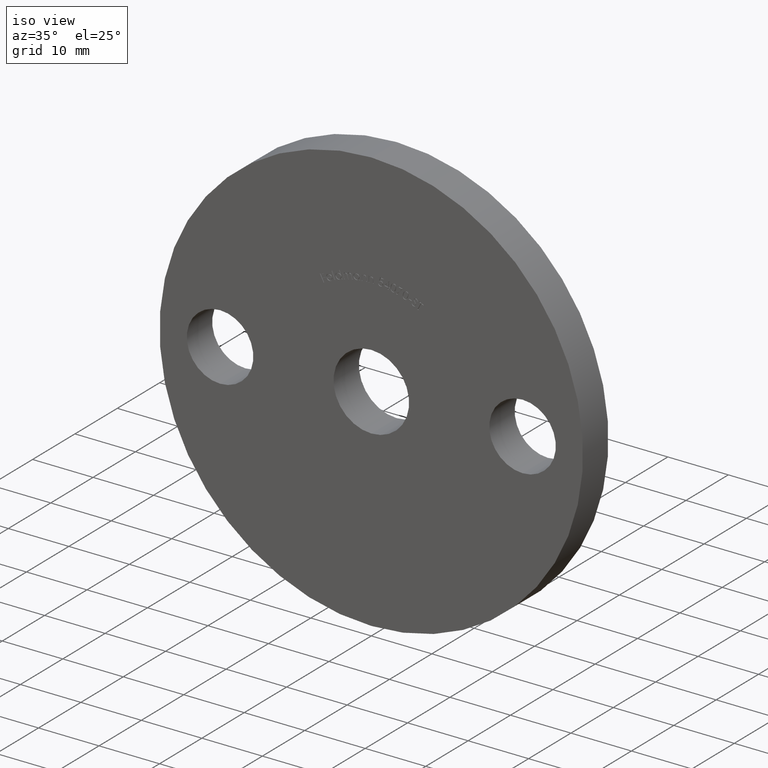
[diagram: clean part render]
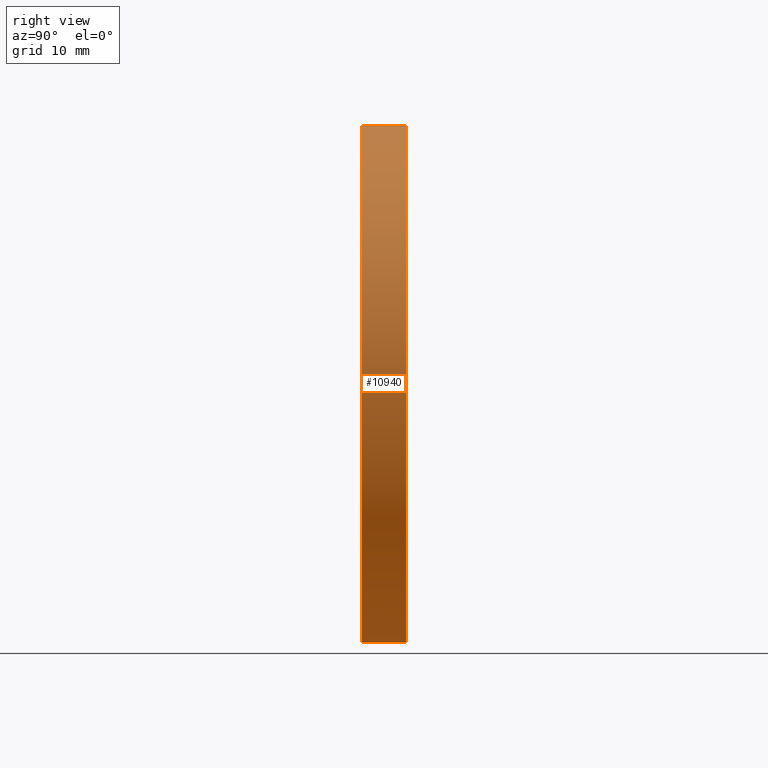
[diagram: tour spotlight — one face highlighted and labeled with its STEP entity id]
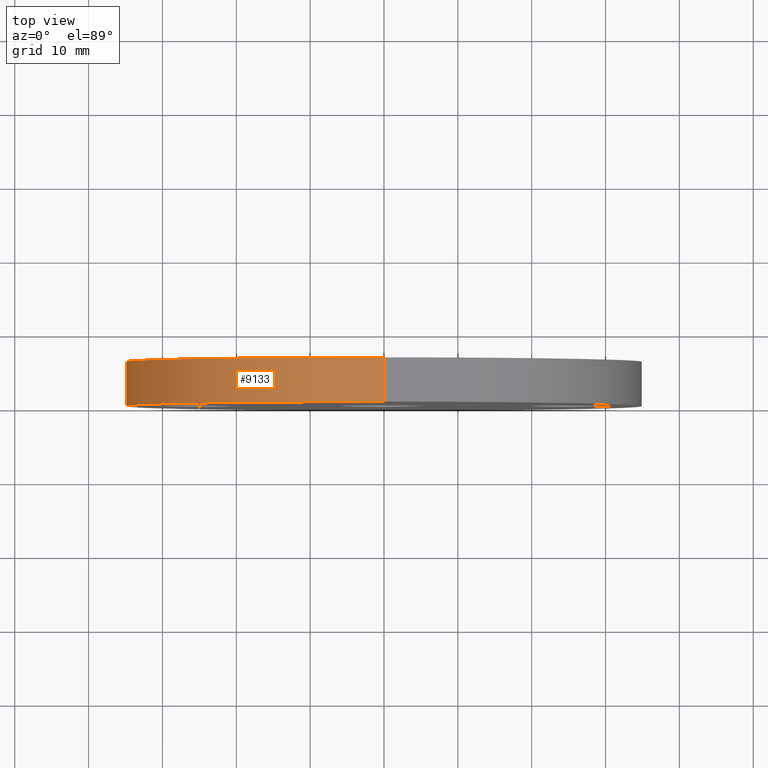
[diagram: tour spotlight — one face highlighted and labeled with its STEP entity id]
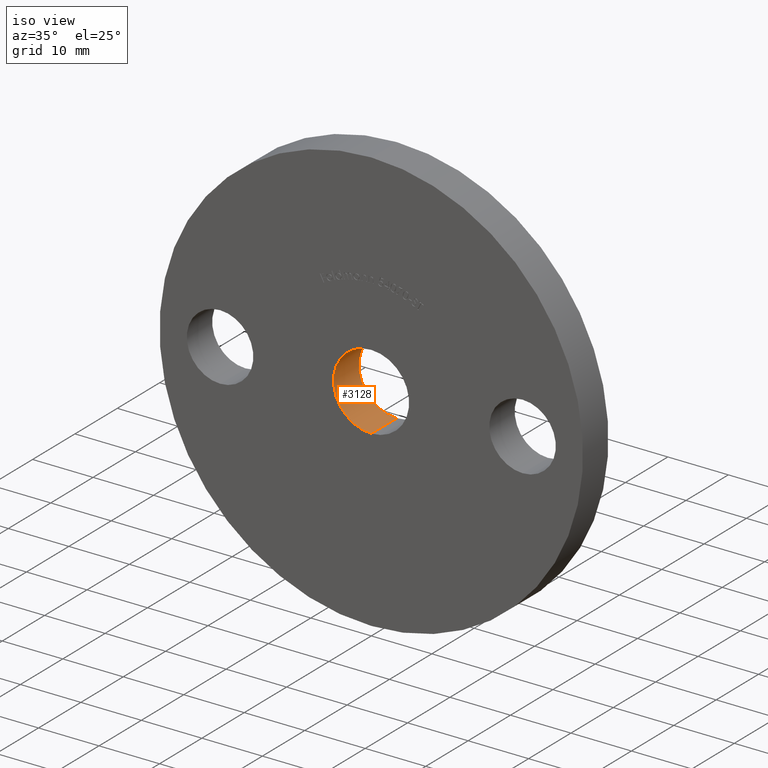
[diagram: tour spotlight — one face highlighted and labeled with its STEP entity id]
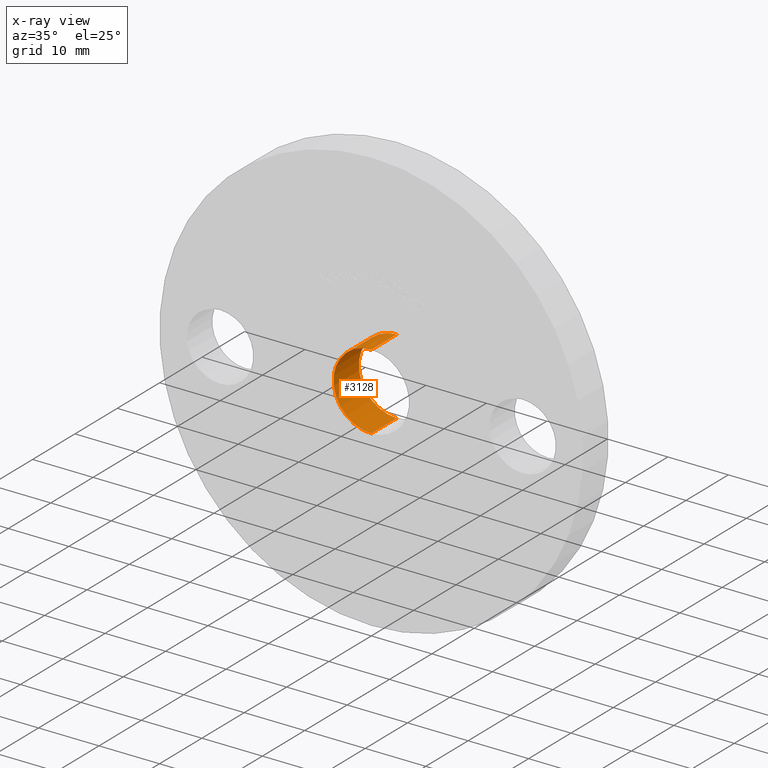
[diagram: x-ray of the same camera — body ghosted, this tour face saturated]
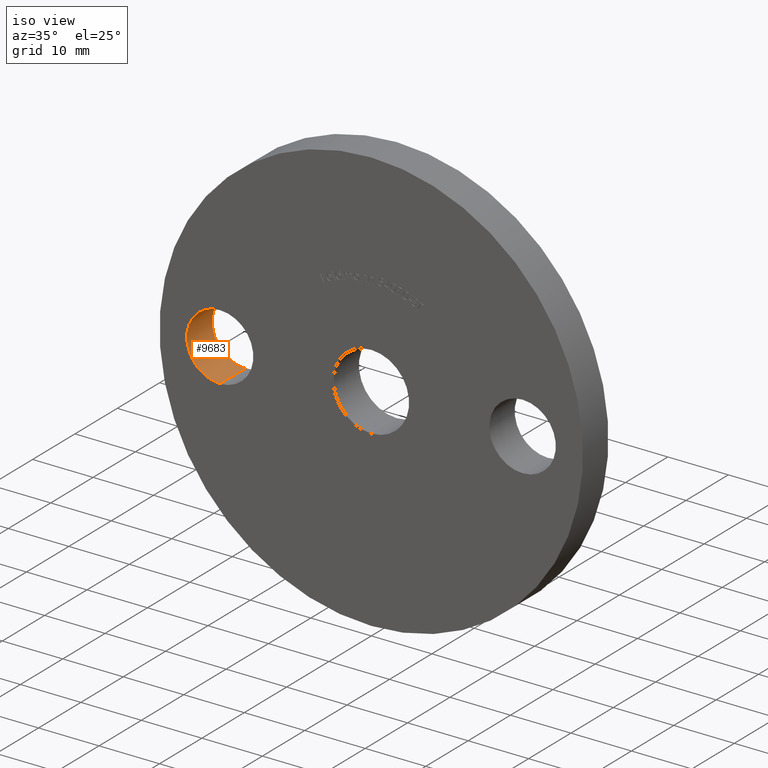
[diagram: tour spotlight — one face highlighted and labeled with its STEP entity id]
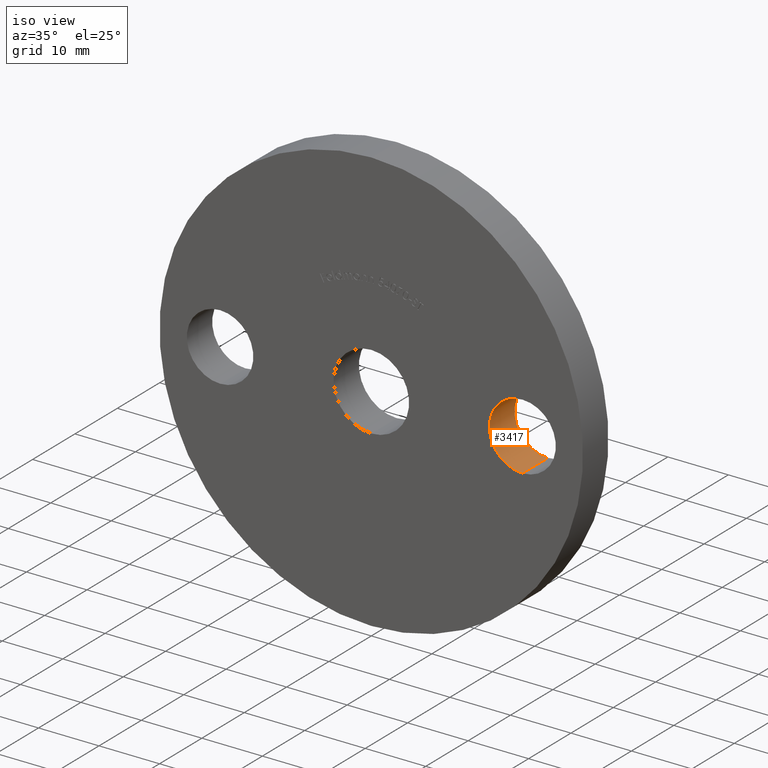
[diagram: tour spotlight — one face highlighted and labeled with its STEP entity id]
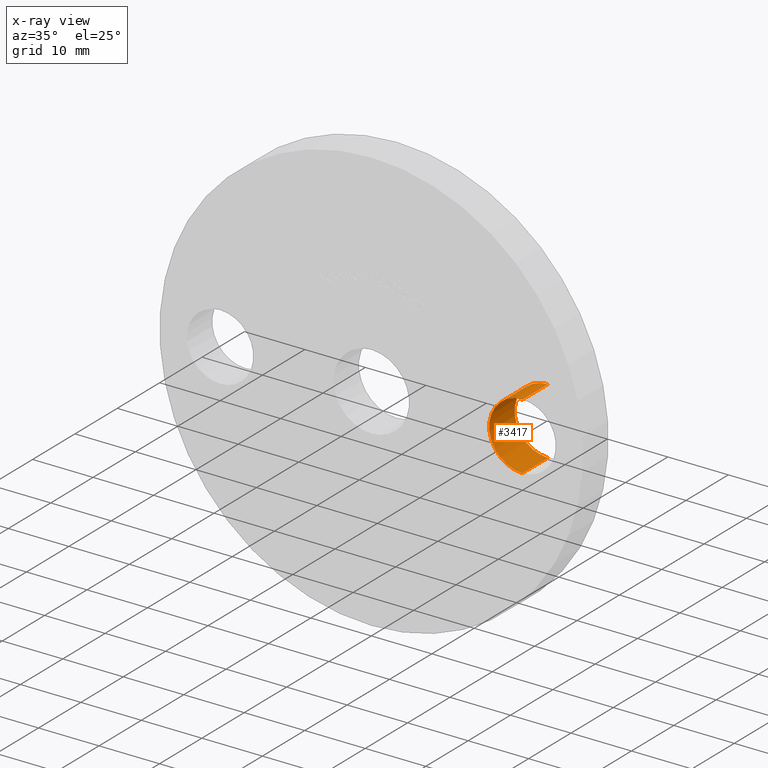
[diagram: x-ray of the same camera — body ghosted, this tour face saturated]
A machine part: a face-by-face anatomy tour. The part has 214 B-rep faces; the first image is the clean iso view, then the 5 largest visible faces are spotlighted one at a time (largest first), each with its STEP entity span.

Face 1 — right view, entity #10940. In plain terms, the highlighted cylindrical surface (partial cylindrical patch) has radius 35 mm, axis along (-0, -1, -0).
Definition (entity closure, byte-faithful):
#329 = DIRECTION ( 'NONE',  ( -0.0000000000000000000, -1.000000000000000000, -0.0000000000000000000 ) ) ;
#481 = FACE_OUTER_BOUND ( 'NONE', #7551, .T. ) ;
#566 = CARTESIAN_POINT ( 'NONE',  ( 0.0000000000000000000, 0.0000000000000000000, 0.0000000000000000000 ) ) ;
#764 = ORIENTED_EDGE ( 'NONE', *, *, #9467, .T. ) ;
#1168 = CARTESIAN_POINT ( 'NONE',  ( 0.0000000000000000000, 6.000000000000000000, 0.0000000000000000000 ) ) ;
#1481 = DIRECTION ( 'NONE',  ( 0.0000000000000000000, 1.000000000000000000, 0.0000000000000000000 ) ) ;
#1685 = AXIS2_PLACEMENT_3D ( 'NONE', #1168, #10082, #7400 ) ;
#2240 = DIRECTION ( 'NONE',  ( 0.0000000000000000000, 0.0000000000000000000, 1.000000000000000000 ) ) ;
#3028 = DIRECTION ( 'NONE',  ( -0.0000000000000000000, -1.000000000000000000, -0.0000000000000000000 ) ) ;
#3121 = AXIS2_PLACEMENT_3D ( 'NONE', #8350, #3028, #10149 ) ;
#3274 = EDGE_CURVE ( 'NONE', #9953, #6322, #11001, .T. ) ;
#3374 = CARTESIAN_POINT ( 'NONE',  ( 0.0000000000000000000, 0.0000000000000000000, -35.00000000000000700 ) ) ;
#3737 = CIRCLE ( 'NONE', #1685, 35.00000000000000700 ) ;
#3967 = CIRCLE ( 'NONE', #7164, 35.00000000000000700 ) ;
#5529 = VECTOR ( 'NONE', #329, 1000.000000000000000 ) ;
#5568 = EDGE_CURVE ( 'NONE', #11225, #10857, #11109, .T. ) ;
#5740 = CARTESIAN_POINT ( 'NONE',  ( 0.0000000000000000000, 6.000000000000000000, -35.00000000000000700 ) ) ;
#5818 = EDGE_CURVE ( 'NONE', #11225, #9953, #3737, .T. ) ;
#6014 = CARTESIAN_POINT ( 'NONE',  ( 4.286263797015737300E-015, 6.000000000000000000, 35.00000000000000700 ) ) ;
#6283 = VECTOR ( 'NONE', #9338, 1000.000000000000000 ) ;
#6322 = VERTEX_POINT ( 'NONE', #3374 ) ;
#6906 = ORIENTED_EDGE ( 'NONE', *, *, #5568, .T. ) ;
#7164 = AXIS2_PLACEMENT_3D ( 'NONE', #566, #1481, #2240 ) ;
#7400 = DIRECTION ( 'NONE',  ( 0.0000000000000000000, 0.0000000000000000000, 1.000000000000000000 ) ) ;
#7551 = EDGE_LOOP ( 'NONE', ( #10760, #6906, #764, #11252 ) ) ;
#8108 = CARTESIAN_POINT ( 'NONE',  ( 4.286263797015737300E-015, 6.000000000000000000, 35.00000000000000700 ) ) ;
#8238 = CARTESIAN_POINT ( 'NONE',  ( 4.286263797015737300E-015, 0.0000000000000000000, 35.00000000000000700 ) ) ;
#8350 = CARTESIAN_POINT ( 'NONE',  ( 0.0000000000000000000, 6.000000000000000000, 0.0000000000000000000 ) ) ;
#9338 = DIRECTION ( 'NONE',  ( -0.0000000000000000000, -1.000000000000000000, -0.0000000000000000000 ) ) ;
#9467 = EDGE_CURVE ( 'NONE', #10857, #6322, #3967, .T. ) ;
#9828 = CYLINDRICAL_SURFACE ( 'NONE', #3121, 35.00000000000000700 ) ;
#9953 = VERTEX_POINT ( 'NONE', #10431 ) ;
#10082 = DIRECTION ( 'NONE',  ( 0.0000000000000000000, 1.000000000000000000, 0.0000000000000000000 ) ) ;
#10149 = DIRECTION ( 'NONE',  ( 0.0000000000000000000, 0.0000000000000000000, -1.000000000000000000 ) ) ;
#10431 = CARTESIAN_POINT ( 'NONE',  ( 0.0000000000000000000, 6.000000000000000000, -35.00000000000000700 ) ) ;
#10760 = ORIENTED_EDGE ( 'NONE', *, *, #5818, .F. ) ;
#10857 = VERTEX_POINT ( 'NONE', #8238 ) ;
#10940 = ADVANCED_FACE ( 'NONE', ( #481 ), #9828, .T. ) ;
#11001 = LINE ( 'NONE', #5740, #6283 ) ;
#11109 = LINE ( 'NONE', #8108, #5529 ) ;
#11225 = VERTEX_POINT ( 'NONE', #6014 ) ;
#11252 = ORIENTED_EDGE ( 'NONE', *, *, #3274, .F. ) ;

Face 2 — top view, entity #9133. In plain terms, the highlighted cylindrical surface (partial cylindrical patch) has radius 35 mm, axis along (-0, -1, -0).
Definition (entity closure, byte-faithful):
#76 = AXIS2_PLACEMENT_3D ( 'NONE', #11123, #7544, #433 ) ;
#329 = DIRECTION ( 'NONE',  ( -0.0000000000000000000, -1.000000000000000000, -0.0000000000000000000 ) ) ;
#433 = DIRECTION ( 'NONE',  ( 0.0000000000000000000, 0.0000000000000000000, 1.000000000000000000 ) ) ;
#500 = AXIS2_PLACEMENT_3D ( 'NONE', #6960, #3391, #8832 ) ;
#2671 = CIRCLE ( 'NONE', #500, 35.00000000000000700 ) ;
#3274 = EDGE_CURVE ( 'NONE', #9953, #6322, #11001, .T. ) ;
#3374 = CARTESIAN_POINT ( 'NONE',  ( 0.0000000000000000000, 0.0000000000000000000, -35.00000000000000700 ) ) ;
#3391 = DIRECTION ( 'NONE',  ( 0.0000000000000000000, 1.000000000000000000, 0.0000000000000000000 ) ) ;
#3717 = CARTESIAN_POINT ( 'NONE',  ( 0.0000000000000000000, 6.000000000000000000, 0.0000000000000000000 ) ) ;
#3939 = DIRECTION ( 'NONE',  ( 0.0000000000000000000, 0.0000000000000000000, -1.000000000000000000 ) ) ;
#4615 = EDGE_CURVE ( 'NONE', #9953, #11225, #2671, .T. ) ;
#4959 = ORIENTED_EDGE ( 'NONE', *, *, #3274, .T. ) ;
#5529 = VECTOR ( 'NONE', #329, 1000.000000000000000 ) ;
#5568 = EDGE_CURVE ( 'NONE', #11225, #10857, #11109, .T. ) ;
#5613 = ORIENTED_EDGE ( 'NONE', *, *, #7599, .T. ) ;
#5740 = CARTESIAN_POINT ( 'NONE',  ( 0.0000000000000000000, 6.000000000000000000, -35.00000000000000700 ) ) ;
#6014 = CARTESIAN_POINT ( 'NONE',  ( 4.286263797015737300E-015, 6.000000000000000000, 35.00000000000000700 ) ) ;
#6063 = CYLINDRICAL_SURFACE ( 'NONE', #7969, 35.00000000000000700 ) ;
#6283 = VECTOR ( 'NONE', #9338, 1000.000000000000000 ) ;
#6322 = VERTEX_POINT ( 'NONE', #3374 ) ;
#6427 = DIRECTION ( 'NONE',  ( -0.0000000000000000000, -1.000000000000000000, -0.0000000000000000000 ) ) ;
#6566 = ORIENTED_EDGE ( 'NONE', *, *, #4615, .F. ) ;
#6960 = CARTESIAN_POINT ( 'NONE',  ( 0.0000000000000000000, 6.000000000000000000, 0.0000000000000000000 ) ) ;
#7054 = FACE_OUTER_BOUND ( 'NONE', #9402, .T. ) ;
#7544 = DIRECTION ( 'NONE',  ( 0.0000000000000000000, 1.000000000000000000, 0.0000000000000000000 ) ) ;
#7599 = EDGE_CURVE ( 'NONE', #6322, #10857, #10941, .T. ) ;
#7969 = AXIS2_PLACEMENT_3D ( 'NONE', #3717, #6427, #3939 ) ;
#8108 = CARTESIAN_POINT ( 'NONE',  ( 4.286263797015737300E-015, 6.000000000000000000, 35.00000000000000700 ) ) ;
#8238 = CARTESIAN_POINT ( 'NONE',  ( 4.286263797015737300E-015, 0.0000000000000000000, 35.00000000000000700 ) ) ;
#8633 = ORIENTED_EDGE ( 'NONE', *, *, #5568, .F. ) ;
#8832 = DIRECTION ( 'NONE',  ( 0.0000000000000000000, 0.0000000000000000000, 1.000000000000000000 ) ) ;
#9133 = ADVANCED_FACE ( 'NONE', ( #7054 ), #6063, .T. ) ;
#9338 = DIRECTION ( 'NONE',  ( -0.0000000000000000000, -1.000000000000000000, -0.0000000000000000000 ) ) ;
#9402 = EDGE_LOOP ( 'NONE', ( #8633, #6566, #4959, #5613 ) ) ;
#9953 = VERTEX_POINT ( 'NONE', #10431 ) ;
#10431 = CARTESIAN_POINT ( 'NONE',  ( 0.0000000000000000000, 6.000000000000000000, -35.00000000000000700 ) ) ;
#10857 = VERTEX_POINT ( 'NONE', #8238 ) ;
#10941 = CIRCLE ( 'NONE', #76, 35.00000000000000700 ) ;
#11001 = LINE ( 'NONE', #5740, #6283 ) ;
#11109 = LINE ( 'NONE', #8108, #5529 ) ;
#11123 = CARTESIAN_POINT ( 'NONE',  ( 0.0000000000000000000, 0.0000000000000000000, 0.0000000000000000000 ) ) ;
#11225 = VERTEX_POINT ( 'NONE', #6014 ) ;

Face 3 — iso view, entity #3128. An x-ray twin of the same camera follows (body ghosted, this face saturated) — the face is partly hidden behind the body. In plain terms, the highlighted cylindrical surface (partial cylindrical patch) has radius 6.25 mm, axis along (-0, 1, -0).
Definition (entity closure, byte-faithful):
#25 = CARTESIAN_POINT ( 'NONE',  ( 7.654042494670957600E-016, 0.0000000000000000000, -6.250000000000000000 ) ) ;
#384 = DIRECTION ( 'NONE',  ( -0.0000000000000000000, 1.000000000000000000, -0.0000000000000000000 ) ) ;
#556 = CIRCLE ( 'NONE', #2730, 6.250000000000000000 ) ;
#561 = EDGE_CURVE ( 'NONE', #5659, #4731, #556, .T. ) ;
#658 = VERTEX_POINT ( 'NONE', #9727 ) ;
#1100 = AXIS2_PLACEMENT_3D ( 'NONE', #8484, #4186, #10405 ) ;
#1131 = FACE_OUTER_BOUND ( 'NONE', #1992, .T. ) ;
#1457 = ORIENTED_EDGE ( 'NONE', *, *, #561, .F. ) ;
#1517 = DIRECTION ( 'NONE',  ( -0.0000000000000000000, 1.000000000000000000, -0.0000000000000000000 ) ) ;
#1733 = VECTOR ( 'NONE', #384, 1000.000000000000000 ) ;
#1908 = ORIENTED_EDGE ( 'NONE', *, *, #10932, .F. ) ;
#1992 = EDGE_LOOP ( 'NONE', ( #1457, #4377, #2417, #1908 ) ) ;
#2228 = DIRECTION ( 'NONE',  ( 0.0000000000000000000, 0.0000000000000000000, 1.000000000000000000 ) ) ;
#2417 = ORIENTED_EDGE ( 'NONE', *, *, #5003, .T. ) ;
#2654 = CARTESIAN_POINT ( 'NONE',  ( 0.0000000000000000000, 0.0000000000000000000, 0.0000000000000000000 ) ) ;
#2730 = AXIS2_PLACEMENT_3D ( 'NONE', #10901, #7513, #2228 ) ;
#3128 = ADVANCED_FACE ( 'NONE', ( #1131 ), #7954, .F. ) ;
#3286 = CARTESIAN_POINT ( 'NONE',  ( 7.654042494670957600E-016, 0.0000000000000000000, -6.250000000000000000 ) ) ;
#4186 = DIRECTION ( 'NONE',  ( 0.0000000000000000000, 1.000000000000000000, 0.0000000000000000000 ) ) ;
#4377 = ORIENTED_EDGE ( 'NONE', *, *, #10745, .T. ) ;
#4392 = LINE ( 'NONE', #5695, #1733 ) ;
#4731 = VERTEX_POINT ( 'NONE', #10878 ) ;
#5003 = EDGE_CURVE ( 'NONE', #658, #8546, #9316, .T. ) ;
#5479 = LINE ( 'NONE', #3286, #11342 ) ;
#5659 = VERTEX_POINT ( 'NONE', #25 ) ;
#5695 = CARTESIAN_POINT ( 'NONE',  ( 0.0000000000000000000, 0.0000000000000000000, 6.250000000000000000 ) ) ;
#7467 = DIRECTION ( 'NONE',  ( 0.0000000000000000000, 0.0000000000000000000, 1.000000000000000000 ) ) ;
#7513 = DIRECTION ( 'NONE',  ( 0.0000000000000000000, 1.000000000000000000, 0.0000000000000000000 ) ) ;
#7954 = CYLINDRICAL_SURFACE ( 'NONE', #10920, 6.250000000000000000 ) ;
#8484 = CARTESIAN_POINT ( 'NONE',  ( 0.0000000000000000000, 6.000000000000000000, 0.0000000000000000000 ) ) ;
#8546 = VERTEX_POINT ( 'NONE', #9347 ) ;
#9316 = CIRCLE ( 'NONE', #1100, 6.250000000000000000 ) ;
#9347 = CARTESIAN_POINT ( 'NONE',  ( 0.0000000000000000000, 6.000000000000000000, 6.250000000000000000 ) ) ;
#9727 = CARTESIAN_POINT ( 'NONE',  ( 7.654042494670957600E-016, 6.000000000000000000, -6.250000000000000000 ) ) ;
#10405 = DIRECTION ( 'NONE',  ( 0.0000000000000000000, 0.0000000000000000000, 1.000000000000000000 ) ) ;
#10661 = DIRECTION ( 'NONE',  ( -0.0000000000000000000, 1.000000000000000000, -0.0000000000000000000 ) ) ;
#10745 = EDGE_CURVE ( 'NONE', #5659, #658, #5479, .T. ) ;
#10878 = CARTESIAN_POINT ( 'NONE',  ( 0.0000000000000000000, 0.0000000000000000000, 6.250000000000000000 ) ) ;
#10901 = CARTESIAN_POINT ( 'NONE',  ( 0.0000000000000000000, 0.0000000000000000000, 0.0000000000000000000 ) ) ;
#10920 = AXIS2_PLACEMENT_3D ( 'NONE', #2654, #10661, #7467 ) ;
#10932 = EDGE_CURVE ( 'NONE', #4731, #8546, #4392, .T. ) ;
#11342 = VECTOR ( 'NONE', #1517, 1000.000000000000000 ) ;

Face 4 — iso view, entity #9683. In plain terms, the highlighted cylindrical surface (partial cylindrical patch) has radius 5.5 mm, axis along (-0, 1, -0).
Definition (entity closure, byte-faithful):
#104 = CARTESIAN_POINT ( 'NONE',  ( -25.00000000000000000, 0.0000000000000000000, -5.499999999999996400 ) ) ;
#544 = VERTEX_POINT ( 'NONE', #104 ) ;
#940 = CARTESIAN_POINT ( 'NONE',  ( -25.00000000000000000, 6.000000000000000000, 5.499999999999996400 ) ) ;
#1062 = FACE_OUTER_BOUND ( 'NONE', #4663, .T. ) ;
#1184 = CYLINDRICAL_SURFACE ( 'NONE', #4542, 5.499999999999996400 ) ;
#1361 = VERTEX_POINT ( 'NONE', #9397 ) ;
#2374 = CIRCLE ( 'NONE', #10021, 5.499999999999996400 ) ;
#3009 = DIRECTION ( 'NONE',  ( -0.0000000000000000000, 1.000000000000000000, -0.0000000000000000000 ) ) ;
#3105 = ORIENTED_EDGE ( 'NONE', *, *, #9785, .F. ) ;
#3491 = CARTESIAN_POINT ( 'NONE',  ( -25.00000000000000000, 0.0000000000000000000, 0.0000000000000000000 ) ) ;
#3745 = CARTESIAN_POINT ( 'NONE',  ( -25.00000000000000000, 0.0000000000000000000, 5.499999999999996400 ) ) ;
#3823 = VECTOR ( 'NONE', #10824, 1000.000000000000000 ) ;
#4218 = EDGE_CURVE ( 'NONE', #544, #1361, #2374, .T. ) ;
#4350 = DIRECTION ( 'NONE',  ( -0.0000000000000000000, 1.000000000000000000, -0.0000000000000000000 ) ) ;
#4542 = AXIS2_PLACEMENT_3D ( 'NONE', #11507, #4350, #9609 ) ;
#4663 = EDGE_LOOP ( 'NONE', ( #8029, #9119, #5142, #3105 ) ) ;
#5142 = ORIENTED_EDGE ( 'NONE', *, *, #6091, .T. ) ;
#6075 = VECTOR ( 'NONE', #3009, 1000.000000000000000 ) ;
#6091 = EDGE_CURVE ( 'NONE', #7761, #7043, #11390, .T. ) ;
#6346 = LINE ( 'NONE', #10129, #6075 ) ;
#7043 = VERTEX_POINT ( 'NONE', #940 ) ;
#7209 = CARTESIAN_POINT ( 'NONE',  ( -25.00000000000000000, 6.000000000000000000, 0.0000000000000000000 ) ) ;
#7761 = VERTEX_POINT ( 'NONE', #10270 ) ;
#8019 = DIRECTION ( 'NONE',  ( 0.0000000000000000000, 1.000000000000000000, 0.0000000000000000000 ) ) ;
#8029 = ORIENTED_EDGE ( 'NONE', *, *, #4218, .F. ) ;
#8170 = DIRECTION ( 'NONE',  ( 0.0000000000000000000, 0.0000000000000000000, 1.000000000000000000 ) ) ;
#8324 = EDGE_CURVE ( 'NONE', #544, #7761, #6346, .T. ) ;
#9119 = ORIENTED_EDGE ( 'NONE', *, *, #8324, .T. ) ;
#9397 = CARTESIAN_POINT ( 'NONE',  ( -25.00000000000000000, 0.0000000000000000000, 5.499999999999996400 ) ) ;
#9609 = DIRECTION ( 'NONE',  ( 0.0000000000000000000, 0.0000000000000000000, 1.000000000000000000 ) ) ;
#9683 = ADVANCED_FACE ( 'NONE', ( #1062 ), #1184, .F. ) ;
#9785 = EDGE_CURVE ( 'NONE', #1361, #7043, #10368, .T. ) ;
#9812 = DIRECTION ( 'NONE',  ( 0.0000000000000000000, 0.0000000000000000000, 1.000000000000000000 ) ) ;
#9877 = DIRECTION ( 'NONE',  ( 0.0000000000000000000, 1.000000000000000000, 0.0000000000000000000 ) ) ;
#10021 = AXIS2_PLACEMENT_3D ( 'NONE', #3491, #9877, #9812 ) ;
#10129 = CARTESIAN_POINT ( 'NONE',  ( -25.00000000000000000, 0.0000000000000000000, -5.499999999999996400 ) ) ;
#10270 = CARTESIAN_POINT ( 'NONE',  ( -25.00000000000000000, 6.000000000000000000, -5.499999999999996400 ) ) ;
#10368 = LINE ( 'NONE', #3745, #3823 ) ;
#10824 = DIRECTION ( 'NONE',  ( -0.0000000000000000000, 1.000000000000000000, -0.0000000000000000000 ) ) ;
#10854 = AXIS2_PLACEMENT_3D ( 'NONE', #7209, #8019, #8170 ) ;
#11390 = CIRCLE ( 'NONE', #10854, 5.499999999999996400 ) ;
#11507 = CARTESIAN_POINT ( 'NONE',  ( -25.00000000000000000, 0.0000000000000000000, 0.0000000000000000000 ) ) ;

Face 5 — iso view, entity #3417. An x-ray twin of the same camera follows (body ghosted, this face saturated) — the face is partly hidden behind the body. In plain terms, the highlighted cylindrical surface (partial cylindrical patch) has radius 5.5 mm, axis along (-0, 1, -0).
Definition (entity closure, byte-faithful):
#35 = CARTESIAN_POINT ( 'NONE',  ( 25.00000000000000000, 0.0000000000000000000, -5.500000000000002700 ) ) ;
#59 = DIRECTION ( 'NONE',  ( -0.0000000000000000000, 1.000000000000000000, -0.0000000000000000000 ) ) ;
#238 = EDGE_CURVE ( 'NONE', #2847, #6840, #2800, .T. ) ;
#923 = DIRECTION ( 'NONE',  ( -0.0000000000000000000, 1.000000000000000000, -0.0000000000000000000 ) ) ;
#2151 = EDGE_CURVE ( 'NONE', #2847, #9441, #3371, .T. ) ;
#2239 = FACE_OUTER_BOUND ( 'NONE', #9533, .T. ) ;
#2244 = CARTESIAN_POINT ( 'NONE',  ( 25.00000000000000000, 0.0000000000000000000, -5.500000000000002700 ) ) ;
#2247 = DIRECTION ( 'NONE',  ( -0.0000000000000000000, 1.000000000000000000, -0.0000000000000000000 ) ) ;
#2398 = VECTOR ( 'NONE', #923, 1000.000000000000000 ) ;
#2500 = LINE ( 'NONE', #5817, #4444 ) ;
#2800 = CIRCLE ( 'NONE', #5453, 5.499999999999996400 ) ;
#2847 = VERTEX_POINT ( 'NONE', #2244 ) ;
#3174 = AXIS2_PLACEMENT_3D ( 'NONE', #5367, #59, #8055 ) ;
#3177 = CARTESIAN_POINT ( 'NONE',  ( 25.00000000000000000, 6.000000000000000000, -5.500000000000002700 ) ) ;
#3371 = LINE ( 'NONE', #35, #2398 ) ;
#3417 = ADVANCED_FACE ( 'NONE', ( #2239 ), #6405, .F. ) ;
#3470 = CARTESIAN_POINT ( 'NONE',  ( 25.00000000000000000, 0.0000000000000000000, 5.499999999999990200 ) ) ;
#4444 = VECTOR ( 'NONE', #2247, 1000.000000000000000 ) ;
#5098 = DIRECTION ( 'NONE',  ( 0.0000000000000000000, 0.0000000000000000000, 1.000000000000000000 ) ) ;
#5138 = DIRECTION ( 'NONE',  ( 0.0000000000000000000, 1.000000000000000000, 0.0000000000000000000 ) ) ;
#5367 = CARTESIAN_POINT ( 'NONE',  ( 25.00000000000000000, 0.0000000000000000000, -6.123233995736766100E-015 ) ) ;
#5453 = AXIS2_PLACEMENT_3D ( 'NONE', #7410, #8299, #6655 ) ;
#5646 = ORIENTED_EDGE ( 'NONE', *, *, #6255, .F. ) ;
#5817 = CARTESIAN_POINT ( 'NONE',  ( 25.00000000000000000, 0.0000000000000000000, 5.499999999999990200 ) ) ;
#6083 = CARTESIAN_POINT ( 'NONE',  ( 25.00000000000000000, 6.000000000000000000, -6.123233995736766100E-015 ) ) ;
#6166 = CARTESIAN_POINT ( 'NONE',  ( 25.00000000000000000, 6.000000000000000000, 5.499999999999990200 ) ) ;
#6255 = EDGE_CURVE ( 'NONE', #6840, #9676, #2500, .T. ) ;
#6405 = CYLINDRICAL_SURFACE ( 'NONE', #3174, 5.499999999999996400 ) ;
#6655 = DIRECTION ( 'NONE',  ( 0.0000000000000000000, 0.0000000000000000000, 1.000000000000000000 ) ) ;
#6840 = VERTEX_POINT ( 'NONE', #3470 ) ;
#7410 = CARTESIAN_POINT ( 'NONE',  ( 25.00000000000000000, 0.0000000000000000000, -6.123233995736766100E-015 ) ) ;
#8055 = DIRECTION ( 'NONE',  ( 0.0000000000000000000, 0.0000000000000000000, 1.000000000000000000 ) ) ;
#8299 = DIRECTION ( 'NONE',  ( 0.0000000000000000000, 1.000000000000000000, 0.0000000000000000000 ) ) ;
#8469 = EDGE_CURVE ( 'NONE', #9441, #9676, #10807, .T. ) ;
#8989 = ORIENTED_EDGE ( 'NONE', *, *, #8469, .T. ) ;
#9441 = VERTEX_POINT ( 'NONE', #3177 ) ;
#9533 = EDGE_LOOP ( 'NONE', ( #10022, #10059, #8989, #5646 ) ) ;
#9676 = VERTEX_POINT ( 'NONE', #6166 ) ;
#10022 = ORIENTED_EDGE ( 'NONE', *, *, #238, .F. ) ;
#10059 = ORIENTED_EDGE ( 'NONE', *, *, #2151, .T. ) ;
#10585 = AXIS2_PLACEMENT_3D ( 'NONE', #6083, #5138, #5098 ) ;
#10807 = CIRCLE ( 'NONE', #10585, 5.499999999999996400 ) ;